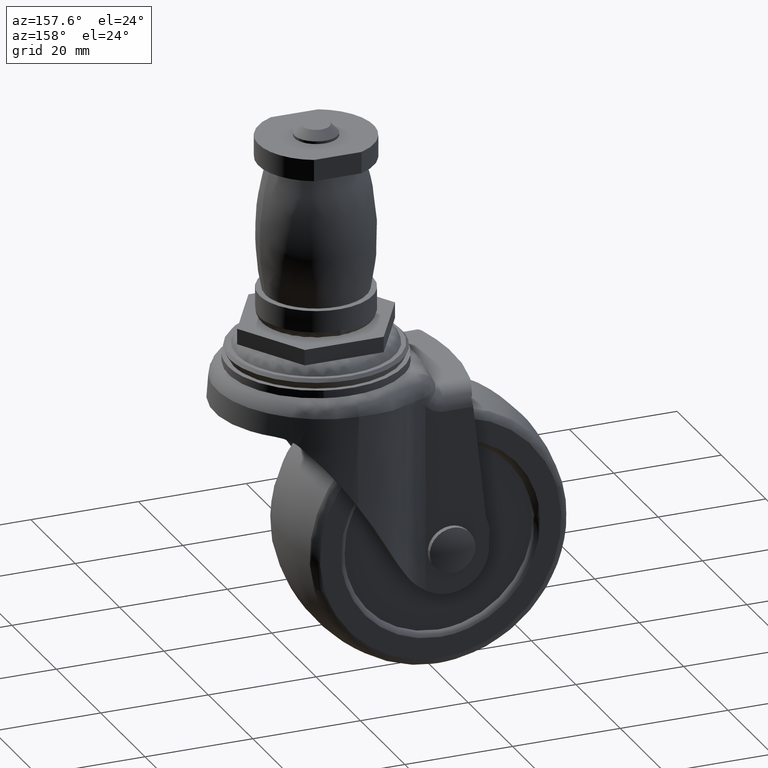
[diagram: clean part render]
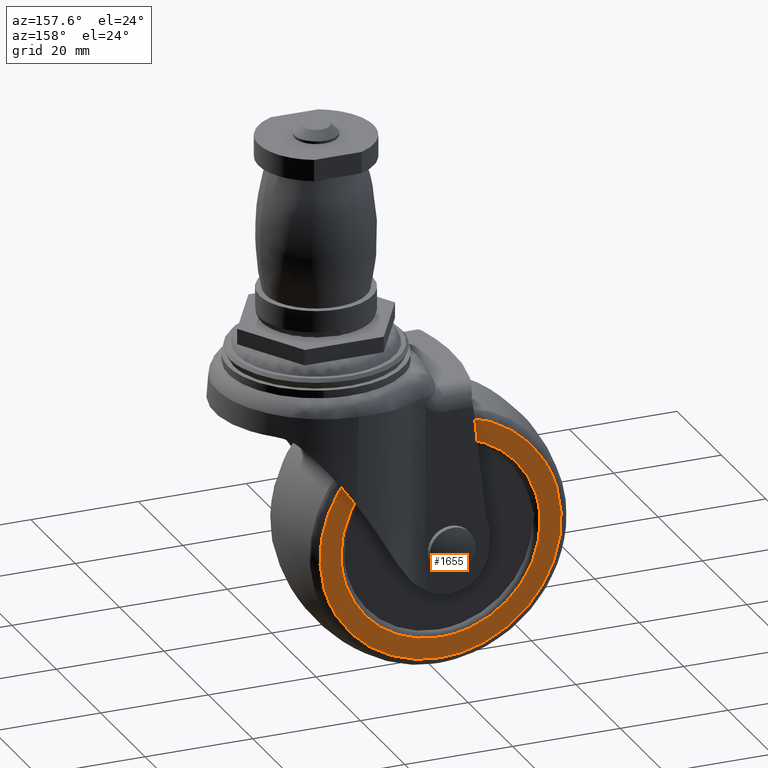
[diagram: same view with one face highlighted and labeled with its STEP entity id]
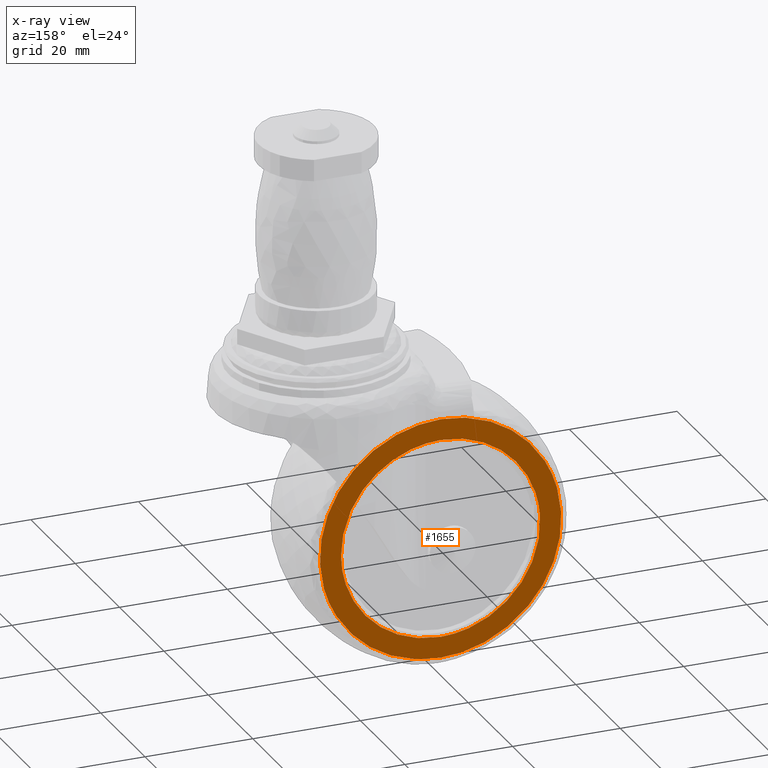
[diagram: x-ray of the same camera — body ghosted, the highlighted face saturated]
A machine part, auxiliary view. The second image highlights one B-rep face of the part: STEP entity #1655.
The next image is the same camera in x-ray: the body ghosted, the highlighted face saturated — about 0% of this face is hidden behind the body in this view.
In plain terms, the highlighted face is a freeform B-spline surface patch.
Its self-contained STEP definition (entity closure, byte-faithful):
#1083=CARTESIAN_POINT('',(2.628124484832698,9.999900999999912,-46.844236898223983));
#1084=VERTEX_POINT('',#1083);
#1098=CARTESIAN_POINT('',(-19.0,9.999901000000000,-18.596717000000300));
#1099=VERTEX_POINT('',#1098);
#1100=CARTESIAN_POINT('',(2.628124484832699,9.999900999999912,-46.844236898223990));
#1101=CARTESIAN_POINT('',(3.403703999999799,9.999901000000000,-43.973795627300653));
#1102=CARTESIAN_POINT('',(3.403703999999799,9.999901000000000,-41.000421000000102));
#1103=CARTESIAN_POINT('',(3.403703999999796,9.999901000000000,-18.596717000000300));
#1104=CARTESIAN_POINT('',(-19.0,9.999901000000000,-18.596717000000300));
#1112=(BOUNDED_CURVE()B_SPLINE_CURVE(2,(#1100,#1101,#1102,#1103,#1104),.UNSPECIFIED.,.F.,.U.)B_SPLINE_CURVE_WITH_KNOTS((3,2,3),(0.205522207670605,0.250000000000000,0.500000000000000),.UNSPECIFIED.)CURVE()GEOMETRIC_REPRESENTATION_ITEM()RATIONAL_B_SPLINE_CURVE((0.914323587275559,0.947891024955709,1.0,0.707106781186547,1.0))REPRESENTATION_ITEM(''));
#1113=EDGE_CURVE('',#1084,#1099,#1112,.T.);
#1115=CARTESIAN_POINT('',(-40.628124484832703,9.999900999999912,-35.156605101776222));
#1116=VERTEX_POINT('',#1115);
#1117=CARTESIAN_POINT('',(-19.0,9.999901000000000,-18.596717000000300));
#1118=CARTESIAN_POINT('',(-36.153721840155136,9.999901000000000,-18.596717000000297));
#1119=CARTESIAN_POINT('',(-40.628124484832696,9.999900999999912,-35.156605101776222));
#1127=(BOUNDED_CURVE()B_SPLINE_CURVE(2,(#1117,#1118,#1119),.UNSPECIFIED.,.F.,.U.)B_SPLINE_CURVE_WITH_KNOTS((3,3),(0.500000000000000,0.705522207670605),.UNSPECIFIED.)CURVE()GEOMETRIC_REPRESENTATION_ITEM()RATIONAL_B_SPLINE_CURVE((1.0,0.759215756230838,0.914323587275559))REPRESENTATION_ITEM(''));
#1128=EDGE_CURVE('',#1099,#1116,#1127,.T.);
#1230=CARTESIAN_POINT('',(-19.0,9.999901000000000,-63.404124999999887));
#1231=VERTEX_POINT('',#1230);
#1232=CARTESIAN_POINT('',(-40.628124484832703,9.999900999999912,-35.156605101776222));
#1233=CARTESIAN_POINT('',(-41.403703999999792,9.999901000000000,-38.027046372699552));
#1234=CARTESIAN_POINT('',(-41.403703999999799,9.999901000000000,-41.000421000000102));
#1235=CARTESIAN_POINT('',(-41.403703999999784,9.999901000000000,-63.404124999999894));
#1236=CARTESIAN_POINT('',(-19.0,9.999901000000000,-63.404124999999887));
#1244=(BOUNDED_CURVE()B_SPLINE_CURVE(2,(#1232,#1233,#1234,#1235,#1236),.UNSPECIFIED.,.F.,.U.)B_SPLINE_CURVE_WITH_KNOTS((3,2,3),(0.705522207670605,0.750000000000000,1.0),.UNSPECIFIED.)CURVE()GEOMETRIC_REPRESENTATION_ITEM()RATIONAL_B_SPLINE_CURVE((0.914323587275559,0.947891024955709,1.0,0.707106781186547,1.0))REPRESENTATION_ITEM(''));
#1245=EDGE_CURVE('',#1116,#1231,#1244,.T.);
#1247=CARTESIAN_POINT('',(-19.0,9.999901000000000,-63.404124999999887));
#1248=CARTESIAN_POINT('',(-1.846278159844875,9.999901000000000,-63.404124999999887));
#1249=CARTESIAN_POINT('',(2.628124484832698,9.999900999999912,-46.844236898223983));
#1257=(BOUNDED_CURVE()B_SPLINE_CURVE(2,(#1247,#1248,#1249),.UNSPECIFIED.,.F.,.U.)B_SPLINE_CURVE_WITH_KNOTS((3,3),(0.0,0.205522207670605),.UNSPECIFIED.)CURVE()GEOMETRIC_REPRESENTATION_ITEM()RATIONAL_B_SPLINE_CURVE((1.0,0.759215756230838,0.914323587275559))REPRESENTATION_ITEM(''));
#1258=EDGE_CURVE('',#1231,#1084,#1257,.T.);
#1293=CARTESIAN_POINT('',(-37.454766450100493,9.999900999999998,-39.710369722739998));
#1294=VERTEX_POINT('',#1293);
#1295=CARTESIAN_POINT('',(-19.0,9.999901000000000,-59.500222000000001));
#1296=VERTEX_POINT('',#1295);
#1297=CARTESIAN_POINT('',(-37.454766450100486,9.999900999999998,-39.710369722739998));
#1298=CARTESIAN_POINT('',(-37.499800999999906,9.999901000000000,-40.354609303174129));
#1299=CARTESIAN_POINT('',(-37.499800999999913,9.999901000000000,-41.000421000000102));
#1300=CARTESIAN_POINT('',(-37.499800999999906,9.999901000000000,-59.500222000000015));
#1301=CARTESIAN_POINT('',(-19.0,9.999901000000000,-59.500222000000001));
#1309=(BOUNDED_CURVE()B_SPLINE_CURVE(2,(#1297,#1298,#1299,#1300,#1301),.UNSPECIFIED.,.F.,.U.)B_SPLINE_CURVE_WITH_KNOTS((3,2,3),(0.737833686534060,0.750000000000000,1.0),.UNSPECIFIED.)CURVE()GEOMETRIC_REPRESENTATION_ITEM()RATIONAL_B_SPLINE_CURVE((0.972879876384793,0.985746277151469,1.0,0.707106781186548,1.0))REPRESENTATION_ITEM(''));
#1310=EDGE_CURVE('',#1294,#1296,#1309,.T.);
#1359=CARTESIAN_POINT('',(-0.501659669522888,9.999901000000001,-41.232890237417656));
#1360=VERTEX_POINT('',#1359);
#1374=CARTESIAN_POINT('',(-19.0,9.999901000000000,-59.500222000000001));
#1375=CARTESIAN_POINT('',(-0.731225812092940,9.999900999999998,-59.500221999999994));
#1376=CARTESIAN_POINT('',(-0.501659669522888,9.999901000000001,-41.232890237417671));
#1384=(BOUNDED_CURVE()B_SPLINE_CURVE(2,(#1374,#1375,#1376),.UNSPECIFIED.,.F.,.U.)B_SPLINE_CURVE_WITH_KNOTS((3,3),(0.0,0.247784295916876),.UNSPECIFIED.)CURVE()GEOMETRIC_REPRESENTATION_ITEM()RATIONAL_B_SPLINE_CURVE((1.0,0.709702639989925,0.994854295632844))REPRESENTATION_ITEM(''));
#1385=EDGE_CURVE('',#1296,#1360,#1384,.T.);
#1413=CARTESIAN_POINT('',(-19.0,9.999901000000000,-22.500620000000200));
#1414=VERTEX_POINT('',#1413);
#1415=CARTESIAN_POINT('',(-19.0,9.999901000000000,-22.500620000000200));
#1416=CARTESIAN_POINT('',(-36.251746099491626,9.999901000000000,-22.500620000000190));
#1417=CARTESIAN_POINT('',(-37.454766450100486,9.999900999999998,-39.710369722739998));
#1425=(BOUNDED_CURVE()B_SPLINE_CURVE(2,(#1415,#1416,#1417),.UNSPECIFIED.,.F.,.U.)B_SPLINE_CURVE_WITH_KNOTS((3,3),(0.500000000000000,0.737833686534059),.UNSPECIFIED.)CURVE()GEOMETRIC_REPRESENTATION_ITEM()RATIONAL_B_SPLINE_CURVE((1.0,0.721360504035079,0.972879876384792))REPRESENTATION_ITEM(''));
#1426=EDGE_CURVE('',#1414,#1294,#1425,.T.);
#1428=CARTESIAN_POINT('',(-0.501659669522888,9.999901000000001,-41.232890237417664));
#1429=CARTESIAN_POINT('',(-0.500199000000100,9.999901000000000,-41.116660207734967));
#1430=CARTESIAN_POINT('',(-0.500199000000100,9.999901000000000,-41.000421000000102));
#1431=CARTESIAN_POINT('',(-0.500199000000100,9.999901000000000,-22.500620000000204));
#1432=CARTESIAN_POINT('',(-19.0,9.999901000000000,-22.500620000000200));
#1440=(BOUNDED_CURVE()B_SPLINE_CURVE(2,(#1428,#1429,#1430,#1431,#1432),.UNSPECIFIED.,.F.,.U.)B_SPLINE_CURVE_WITH_KNOTS((3,2,3),(0.247784295916876,0.250000000000000,0.500000000000000),.UNSPECIFIED.)CURVE()GEOMETRIC_REPRESENTATION_ITEM()RATIONAL_B_SPLINE_CURVE((0.994854295632844,0.997404141196622,1.0,0.707106781186548,1.0))REPRESENTATION_ITEM(''));
#1441=EDGE_CURVE('',#1360,#1414,#1440,.T.);
#1638=CARTESIAN_POINT('',(-43.637262241975570,9.999901000000000,-16.358587898485549));
#1639=CARTESIAN_POINT('',(-43.637262241975570,9.999901000000000,-65.642256104561881));
#1640=CARTESIAN_POINT('',(5.637260639640212,9.999901000000000,-16.358587898485549));
#1641=CARTESIAN_POINT('',(5.637260639640212,9.999901000000000,-65.642256104561881));
#1642=B_SPLINE_SURFACE_WITH_KNOTS('',1,1,((#1638,#1640),(#1639,#1641)),.UNSPECIFIED.,.F.,.F.,.U.,(2,2),(2,2),(0.0,49.283668206076328),(0.0,49.274522881615781),.UNSPECIFIED.);
#1643=ORIENTED_EDGE('',*,*,#1245,.F.);
#1644=ORIENTED_EDGE('',*,*,#1128,.F.);
#1645=ORIENTED_EDGE('',*,*,#1113,.F.);
#1646=ORIENTED_EDGE('',*,*,#1258,.F.);
#1647=EDGE_LOOP('',(#1643,#1644,#1645,#1646));
#1648=FACE_OUTER_BOUND('',#1647,.T.);
#1649=ORIENTED_EDGE('',*,*,#1385,.T.);
#1650=ORIENTED_EDGE('',*,*,#1441,.T.);
#1651=ORIENTED_EDGE('',*,*,#1426,.T.);
#1652=ORIENTED_EDGE('',*,*,#1310,.T.);
#1653=EDGE_LOOP('',(#1649,#1650,#1651,#1652));
#1654=FACE_BOUND('',#1653,.T.);
#1655=ADVANCED_FACE('',(#1648,#1654),#1642,.F.);